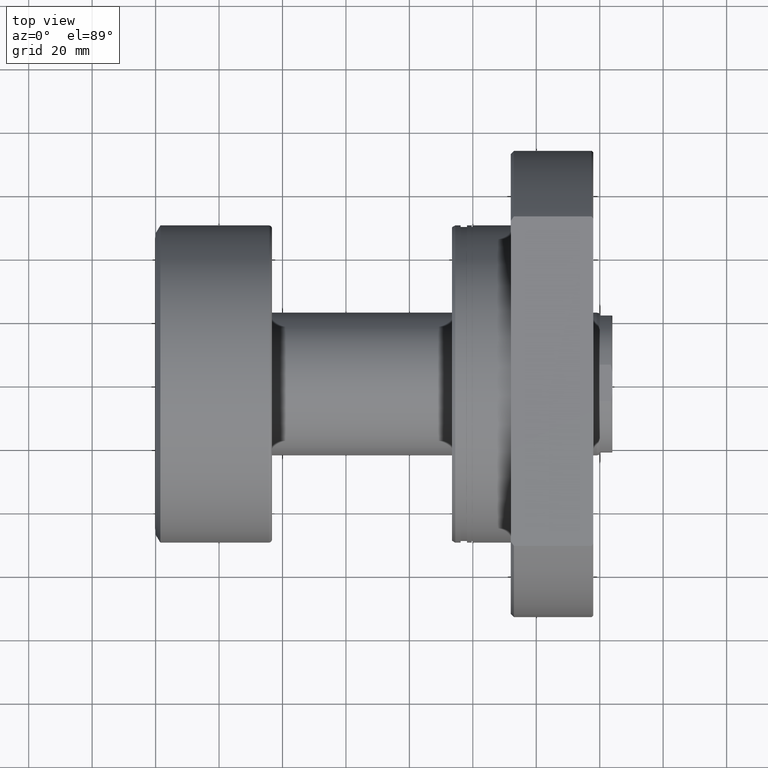
[diagram: clean part render]
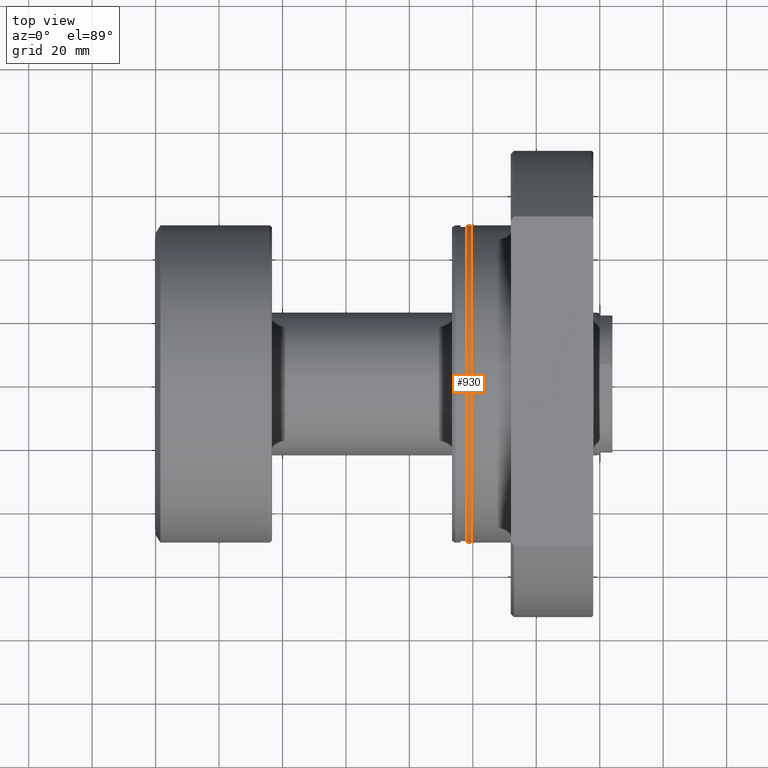
[diagram: same view with one face highlighted and labeled with its STEP entity id]
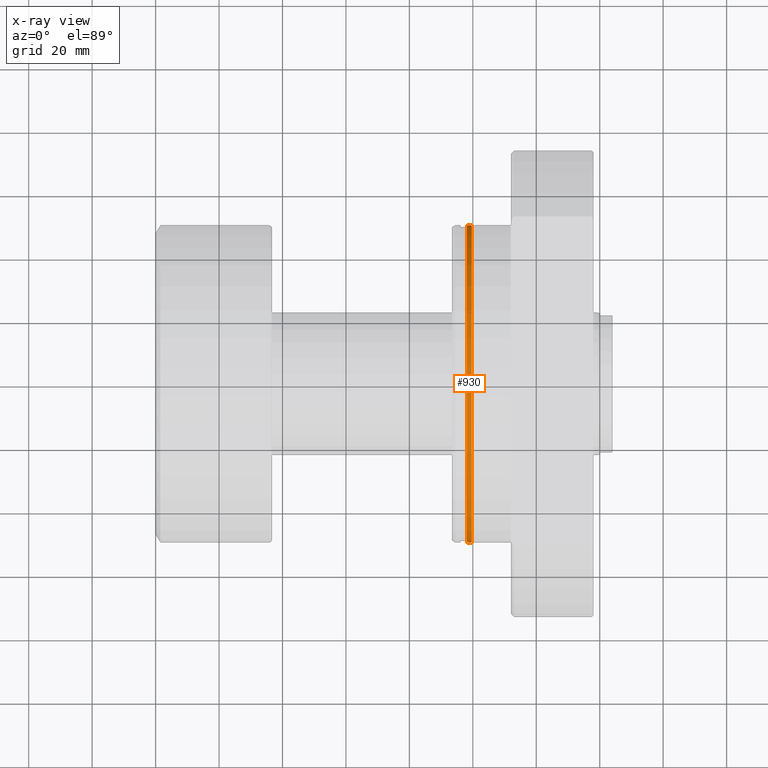
[diagram: x-ray of the same camera — body ghosted, the highlighted face saturated]
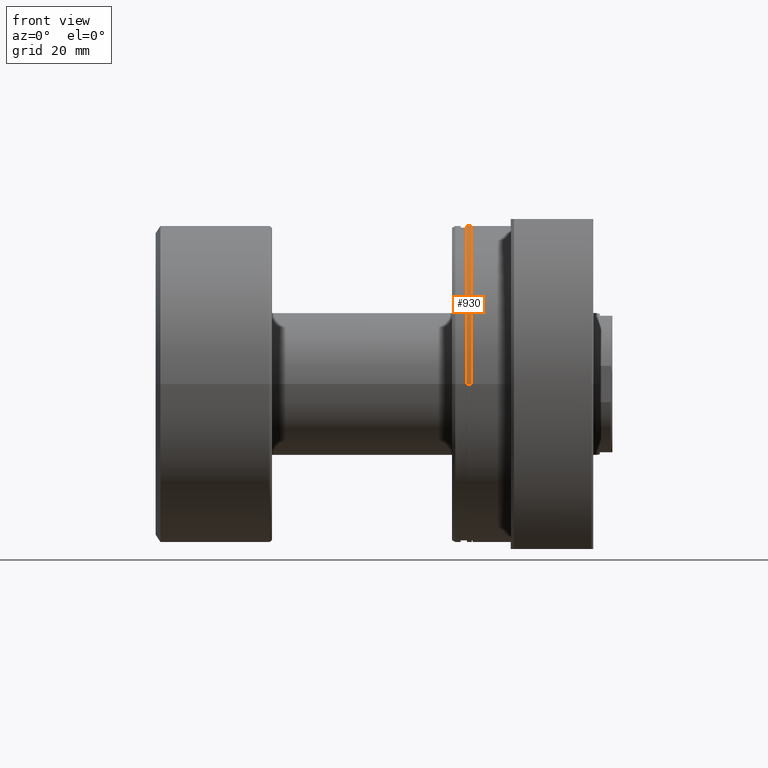
[diagram: same view with one face highlighted and labeled with its STEP entity id]
A machine part, top view. The second image highlights one B-rep face of the part: STEP entity #930.
The next image is the same camera in x-ray: the body ghosted, the highlighted face saturated — about 0% of this face is hidden behind the body in this view.
A second angle (front view) of the same face is appended — the face is thin or edge-on in the first view.
In plain terms, the highlighted cylindrical surface (partial cylindrical patch) has radius 50 mm, axis along (1, 0, 0).
Its self-contained STEP definition (entity closure, byte-faithful):
#24 = EDGE_CURVE ( 'NONE', #1667, #1840, #2159, .T. ) ;
#36 = VERTEX_POINT ( 'NONE', #2314 ) ;
#86 = AXIS2_PLACEMENT_3D ( 'NONE', #1303, #559, #3112 ) ;
#145 = CARTESIAN_POINT ( 'NONE',  ( 6.200000000001040235, -50.00000000000000000, 6.123233995736766085E-15 ) ) ;
#195 = CARTESIAN_POINT ( 'NONE',  ( 6.200000000001035794, 50.00000000000000000, 0.000000000000000000 ) ) ;
#213 = ORIENTED_EDGE ( 'NONE', *, *, #24, .F. ) ;
#401 = VECTOR ( 'NONE', #828, 1000.000000000000000 ) ;
#515 = EDGE_LOOP ( 'NONE', ( #679, #2424, #213, #2695 ) ) ;
#559 = DIRECTION ( 'NONE',  ( 1.000000000000000000, 5.504030557965630938E-17, -0.000000000000000000 ) ) ;
#679 = ORIENTED_EDGE ( 'NONE', *, *, #2375, .T. ) ;
#828 = DIRECTION ( 'NONE',  ( 1.000000000000000000, 5.504030557965630938E-17, -0.000000000000000000 ) ) ;
#887 = LINE ( 'NONE', #2835, #3060 ) ;
#930 = ADVANCED_FACE ( 'NONE', ( #1966 ), #2195, .T. ) ;
#968 = CARTESIAN_POINT ( 'NONE',  ( 44.50000000000000000, 2.449293598294705724E-15, 0.000000000000000000 ) ) ;
#1303 = CARTESIAN_POINT ( 'NONE',  ( 6.200000000001038458, 3.412498945939261996E-16, 0.000000000000000000 ) ) ;
#1359 = EDGE_CURVE ( 'NONE', #36, #1840, #2622, .T. ) ;
#1365 = CARTESIAN_POINT ( 'NONE',  ( 44.50000000000000000, -50.00000000000000000, 6.123233995736766085E-15 ) ) ;
#1388 = DIRECTION ( 'NONE',  ( 1.000000000000000000, 5.504030557965630938E-17, -0.000000000000000000 ) ) ;
#1475 = AXIS2_PLACEMENT_3D ( 'NONE', #1491, #1980, #2498 ) ;
#1491 = CARTESIAN_POINT ( 'NONE',  ( 4.699999999998552447, 2.586894362243048990E-16, 0.000000000000000000 ) ) ;
#1667 = VERTEX_POINT ( 'NONE', #195 ) ;
#1673 = VERTEX_POINT ( 'NONE', #3191 ) ;
#1840 = VERTEX_POINT ( 'NONE', #145 ) ;
#1950 = DIRECTION ( 'NONE',  ( 1.000000000000000000, 5.504030557965630938E-17, -0.000000000000000000 ) ) ;
#1966 = FACE_OUTER_BOUND ( 'NONE', #515, .T. ) ;
#1980 = DIRECTION ( 'NONE',  ( 1.000000000000000000, 5.504030557965630938E-17, -0.000000000000000000 ) ) ;
#2116 = AXIS2_PLACEMENT_3D ( 'NONE', #968, #1950, #2964 ) ;
#2159 = CIRCLE ( 'NONE', #86, 50.00000000000000000 ) ;
#2195 = CYLINDRICAL_SURFACE ( 'NONE', #2116, 50.00000000000000000 ) ;
#2217 = EDGE_CURVE ( 'NONE', #1673, #1667, #887, .T. ) ;
#2314 = CARTESIAN_POINT ( 'NONE',  ( 4.699999999998555111, -50.00000000000000000, 6.123233995736766085E-15 ) ) ;
#2375 = EDGE_CURVE ( 'NONE', #1673, #36, #2910, .T. ) ;
#2424 = ORIENTED_EDGE ( 'NONE', *, *, #1359, .T. ) ;
#2498 = DIRECTION ( 'NONE',  ( -5.204170427930421283E-17, 1.000000000000000000, 0.000000000000000000 ) ) ;
#2622 = LINE ( 'NONE', #1365, #401 ) ;
#2695 = ORIENTED_EDGE ( 'NONE', *, *, #2217, .F. ) ;
#2835 = CARTESIAN_POINT ( 'NONE',  ( 44.50000000000000000, 50.00000000000000000, 0.000000000000000000 ) ) ;
#2910 = CIRCLE ( 'NONE', #1475, 50.00000000000000000 ) ;
#2964 = DIRECTION ( 'NONE',  ( 0.000000000000000000, 1.000000000000000000, 0.000000000000000000 ) ) ;
#3060 = VECTOR ( 'NONE', #1388, 1000.000000000000000 ) ;
#3112 = DIRECTION ( 'NONE',  ( -5.204170427930421283E-17, 1.000000000000000000, 0.000000000000000000 ) ) ;
#3191 = CARTESIAN_POINT ( 'NONE',  ( 4.699999999998549782, 50.00000000000000000, 0.000000000000000000 ) ) ;